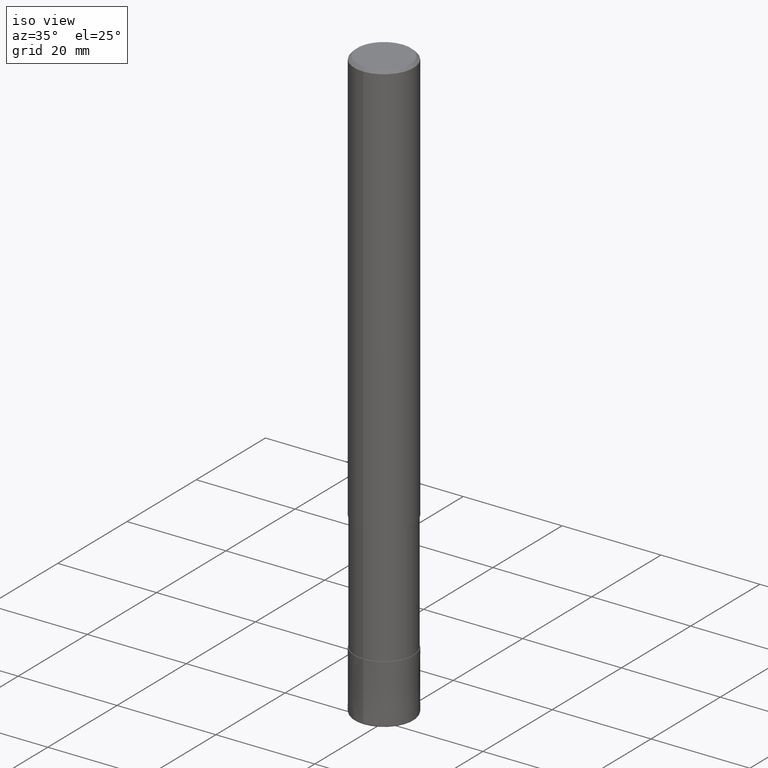
[diagram: clean part render]
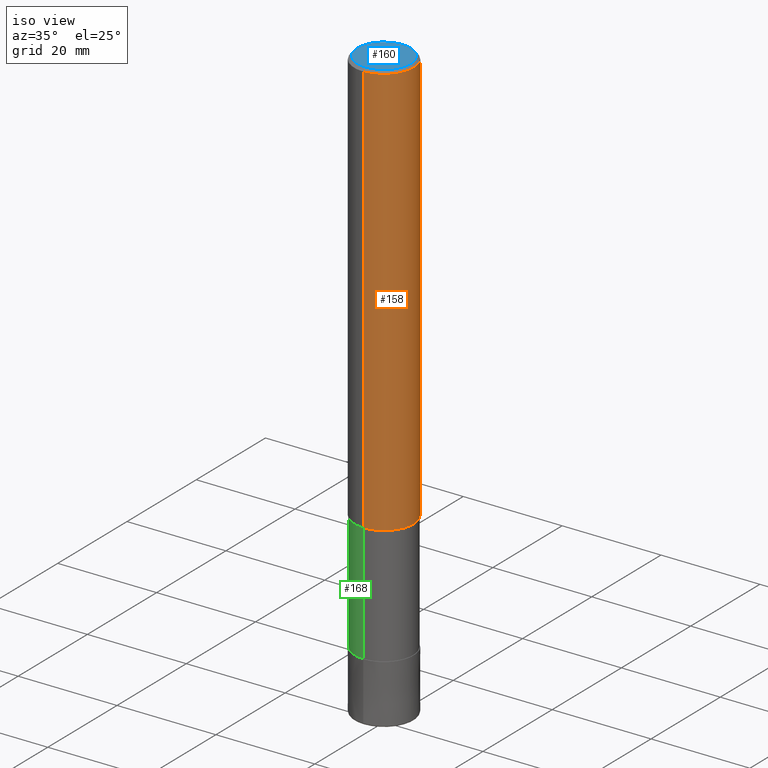
[diagram: same view with three faces highlighted in distinct colors, each labeled with its STEP entity id]
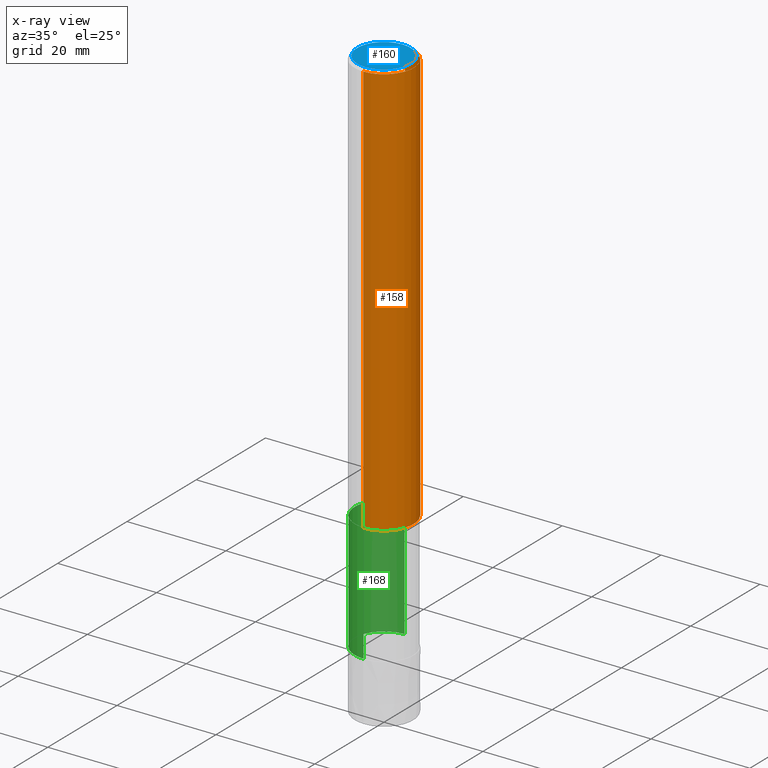
[diagram: x-ray of the same camera — body ghosted, the three highlighted faces saturated]
A machine part, iso view with three faces highlighted in distinct colors.
The next image is the same camera in x-ray (body ghosted, the three faces saturated) — at least one of them is partly hidden behind the body in this view.
Their STEP definitions:

[orange] entity #158 — the highlighted cylindrical surface (edge-blend (fillet) strip) has radius 6 mm, axis along (-0, -0, 1).
#102=EDGE_CURVE('',#188,#200,#239,.T.);
#112=EDGE_CURVE('',#162,#188,#251,.T.);
#118=EDGE_CURVE('',#182,#200,#257,.T.);
#158=ADVANCED_FACE('',(#303),#304,.T.);
#162=VERTEX_POINT('',#309);
#182=VERTEX_POINT('',#332);
#184=EDGE_CURVE('',#182,#162,#334,.T.);
#188=VERTEX_POINT('',#338);
#200=VERTEX_POINT('',#351);
#239=LINE('',#391,#392);
#251=CIRCLE('',#408,6.0);
#257=CIRCLE('',#415,6.0);
#303=FACE_OUTER_BOUND('',#468,.T.);
#304=CYLINDRICAL_SURFACE('',#469,6.0);
#309=CARTESIAN_POINT('',(0.0,6.0,-84.0));
#332=CARTESIAN_POINT('',(0.0,6.0,-0.599999999999994));
#334=LINE('',#502,#503);
#338=CARTESIAN_POINT('',(7.34763812293426E-016,-6.0,-84.0));
#351=CARTESIAN_POINT('',(7.34763812293426E-016,-6.0,-0.599999999999994));
#391=CARTESIAN_POINT('',(7.34763812293426E-016,-6.0,-42.3));
#392=VECTOR('',#548,1.0);
#408=AXIS2_PLACEMENT_3D('',#561,#562,#563);
#415=AXIS2_PLACEMENT_3D('',#564,#565,#566);
#468=EDGE_LOOP('',(#636,#637,#638,#639));
#469=AXIS2_PLACEMENT_3D('',#640,#641,#642);
#502=CARTESIAN_POINT('',(-7.34763812293426E-016,6.0,-42.3));
#503=VECTOR('',#679,1.0);
#548=DIRECTION('',(-0.0,-0.0,1.0));
#561=CARTESIAN_POINT('',(0.0,0.0,-84.0));
#562=DIRECTION('',(0.0,0.0,-1.0));
#563=DIRECTION('',(0.0,1.0,0.0));
#564=CARTESIAN_POINT('',(0.0,0.0,-0.599999999999994));
#565=DIRECTION('',(0.0,0.0,-1.0));
#566=DIRECTION('',(0.0,1.0,0.0));
#636=ORIENTED_EDGE('',*,*,#184,.F.);
#637=ORIENTED_EDGE('',*,*,#118,.T.);
#638=ORIENTED_EDGE('',*,*,#102,.F.);
#639=ORIENTED_EDGE('',*,*,#112,.F.);
#640=CARTESIAN_POINT('',(0.0,0.0,-42.3));
#641=DIRECTION('',(-0.0,-0.0,1.0));
#642=DIRECTION('',(0.0,1.0,0.0));
#679=DIRECTION('',(0.0,0.0,-1.0));

[blue] entity #160 — the highlighted planar face has unit normal (-0, 0, 1).
#126=VERTEX_POINT('',#267);
#150=VERTEX_POINT('',#295);
#160=ADVANCED_FACE('',(#306),#307,.T.);
#192=EDGE_CURVE('',#126,#150,#343,.T.);
#208=EDGE_CURVE('',#150,#126,#361,.T.);
#267=CARTESIAN_POINT('',(6.61287431064084E-016,-5.4,0.0));
#295=CARTESIAN_POINT('',(0.0,5.4,0.0));
#306=FACE_OUTER_BOUND('',#471,.T.);
#307=PLANE('',#472);
#343=CIRCLE('',#515,5.4);
#361=CIRCLE('',#538,5.4);
#471=EDGE_LOOP('',(#644,#645));
#472=AXIS2_PLACEMENT_3D('',#646,#647,#648);
#515=AXIS2_PLACEMENT_3D('',#689,#690,#691);
#538=AXIS2_PLACEMENT_3D('',#713,#714,#715);
#644=ORIENTED_EDGE('',*,*,#208,.F.);
#645=ORIENTED_EDGE('',*,*,#192,.F.);
#646=CARTESIAN_POINT('',(0.0,2.7,0.0));
#647=DIRECTION('',(-0.0,0.0,1.0));
#648=DIRECTION('',(0.0,-1.0,0.0));
#689=CARTESIAN_POINT('',(0.0,0.0,0.0));
#690=DIRECTION('',(0.0,0.0,-1.0));
#691=DIRECTION('',(0.0,1.0,0.0));
#713=CARTESIAN_POINT('',(0.0,0.0,0.0));
#714=DIRECTION('',(0.0,0.0,-1.0));
#715=DIRECTION('',(0.0,1.0,0.0));

[green] entity #168 — the highlighted cylindrical surface (edge-blend (fillet) strip) has radius 5.91 mm, axis along (-0, -0, 1).
#92=VERTEX_POINT('',#229);
#94=EDGE_CURVE('',#116,#114,#231,.T.);
#114=VERTEX_POINT('',#253);
#116=VERTEX_POINT('',#255);
#152=EDGE_CURVE('',#204,#92,#297,.T.);
#168=ADVANCED_FACE('',(#316),#317,.T.);
#176=EDGE_CURVE('',#116,#92,#326,.T.);
#198=EDGE_CURVE('',#114,#204,#349,.T.);
#204=VERTEX_POINT('',#356);
#229=CARTESIAN_POINT('',(0.0,5.90995,-108.0));
#231=LINE('',#377,#378);
#253=CARTESIAN_POINT('',(7.23736232077256E-016,-5.90995,-84.0));
#255=CARTESIAN_POINT('',(7.23736232077256E-016,-5.90995,-108.0));
#297=LINE('',#459,#460);
#316=FACE_OUTER_BOUND('',#481,.T.);
#317=CYLINDRICAL_SURFACE('',#482,5.90995);
#326=CIRCLE('',#492,5.90995);
#349=CIRCLE('',#525,5.90995);
#356=CARTESIAN_POINT('',(0.0,5.90995,-84.0));
#377=CARTESIAN_POINT('',(7.23736232077256E-016,-5.90995,-96.0));
#378=VECTOR('',#540,1.0);
#459=CARTESIAN_POINT('',(-7.23736232077256E-016,5.90995,-96.0));
#460=VECTOR('',#628,1.0);
#481=EDGE_LOOP('',(#658,#659,#660,#661));
#482=AXIS2_PLACEMENT_3D('',#662,#663,#664);
#492=AXIS2_PLACEMENT_3D('',#673,#674,#675);
#525=AXIS2_PLACEMENT_3D('',#696,#697,#698);
#540=DIRECTION('',(-0.0,-0.0,1.0));
#628=DIRECTION('',(0.0,0.0,-1.0));
#658=ORIENTED_EDGE('',*,*,#152,.T.);
#659=ORIENTED_EDGE('',*,*,#176,.F.);
#660=ORIENTED_EDGE('',*,*,#94,.T.);
#661=ORIENTED_EDGE('',*,*,#198,.T.);
#662=CARTESIAN_POINT('',(0.0,0.0,-96.0));
#663=DIRECTION('',(-0.0,-0.0,1.0));
#664=DIRECTION('',(0.0,1.0,0.0));
#673=CARTESIAN_POINT('',(0.0,0.0,-108.0));
#674=DIRECTION('',(0.0,0.0,-1.0));
#675=DIRECTION('',(0.0,1.0,0.0));
#696=CARTESIAN_POINT('',(0.0,0.0,-84.0));
#697=DIRECTION('',(0.0,0.0,-1.0));
#698=DIRECTION('',(0.0,1.0,0.0));